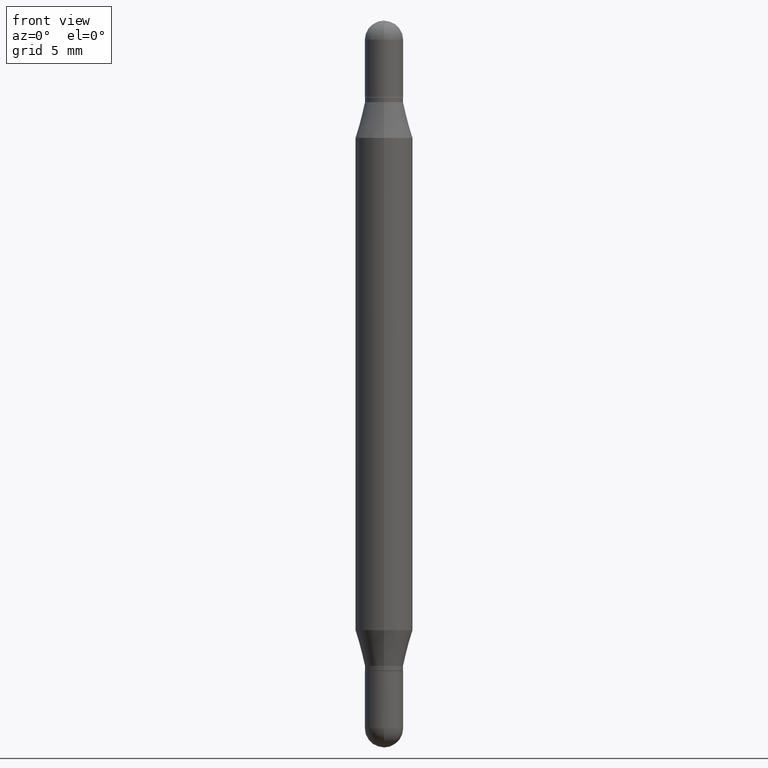
[diagram: clean part render]
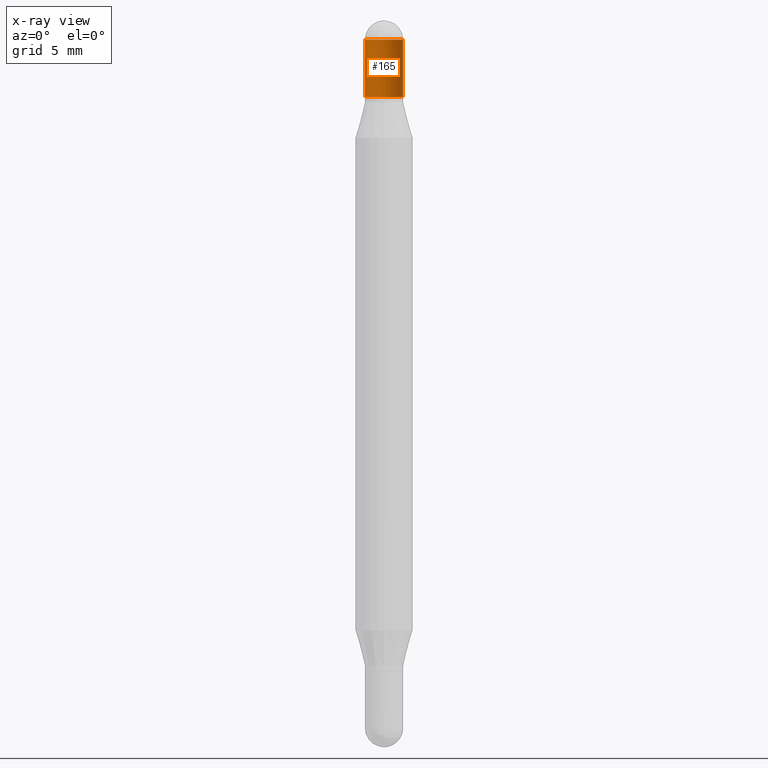
[diagram: x-ray — body ghosted, one internal face saturated and labeled with its STEP entity id]
A machine part, front view, then the same camera in x-ray: the body is ghosted and one INTERNAL B-rep face — a face not visible from any outside direction — is saturated and labeled: STEP entity #165.
In plain terms, the highlighted cylindrical surface (edge-blend (fillet) strip) has radius 0.9995 mm, axis along (-0, -0, -1).
Its self-contained STEP definition (entity closure, byte-faithful):
#49 = DIRECTION ( 'NONE',  ( 2.445468806185136597E-29, 3.479614466977828254E-15, 1.000000000000000000 ) ) ;
#66 = EDGE_CURVE ( 'NONE', #193, #834, #816, .T. ) ;
#69 = ORIENTED_EDGE ( 'NONE', *, *, #601, .F. ) ;
#90 = CARTESIAN_POINT ( 'NONE',  ( 0.03935000000000000303, -8.316958734148117577E-16, -0.1574999999999998901 ) ) ;
#111 = CARTESIAN_POINT ( 'NONE',  ( 3.562436683410197746E-29, -1.457998427744287112E-16, -0.03934999999999994752 ) ) ;
#116 = ORIENTED_EDGE ( 'NONE', *, *, #66, .T. ) ;
#139 = CARTESIAN_POINT ( 'NONE',  ( 0.000000000000000000, -5.214728217544379106E-15, -1.496099999999999985 ) ) ;
#152 = AXIS2_PLACEMENT_3D ( 'NONE', #349, #331, #876 ) ;
#165 = ADVANCED_FACE ( 'NONE', ( #372 ), #215, .T. ) ;
#193 = VERTEX_POINT ( 'NONE', #627 ) ;
#197 = DIRECTION ( 'NONE',  ( 1.000000000000000000, -6.982962677686266711E-15, 0.000000000000000000 ) ) ;
#215 = CYLINDRICAL_SURFACE ( 'NONE', #689, 0.03935000000000000303 ) ;
#255 = CARTESIAN_POINT ( 'NONE',  ( -0.03935000000000000303, -8.139747119883315106E-17, -0.1574999999999998901 ) ) ;
#257 = VERTEX_POINT ( 'NONE', #435 ) ;
#291 = DIRECTION ( 'NONE',  ( -2.445468806185136877E-29, -3.479614466977828648E-15, -1.000000000000000000 ) ) ;
#301 = VECTOR ( 'NONE', #291, 39.37007874015748143 ) ;
#305 = DIRECTION ( 'NONE',  ( 1.000000000000000000, -6.982962677686269077E-15, 0.000000000000000000 ) ) ;
#317 = ORIENTED_EDGE ( 'NONE', *, *, #473, .F. ) ;
#331 = DIRECTION ( 'NONE',  ( 2.445468806185136597E-29, 3.479614466977828254E-15, 1.000000000000000000 ) ) ;
#332 = ORIENTED_EDGE ( 'NONE', *, *, #986, .F. ) ;
#349 = CARTESIAN_POINT ( 'NONE',  ( 3.273504543959423913E-29, -5.569162920478571366E-16, -0.1574999999999998901 ) ) ;
#372 = FACE_OUTER_BOUND ( 'NONE', #606, .T. ) ;
#386 = VERTEX_POINT ( 'NONE', #255 ) ;
#407 = CIRCLE ( 'NONE', #1066, 0.03935000000000000303 ) ;
#435 = CARTESIAN_POINT ( 'NONE',  ( -0.03935000000000000303, -8.139747119883290454E-17, -0.03934999999999994752 ) ) ;
#467 = DIRECTION ( 'NONE',  ( -2.445468806185136877E-29, -3.479614466977828648E-15, -1.000000000000000000 ) ) ;
#473 = EDGE_CURVE ( 'NONE', #257, #386, #636, .T. ) ;
#554 = CARTESIAN_POINT ( 'NONE',  ( -0.03935000000000000303, -4.944767621332070245E-15, -1.496099999999999985 ) ) ;
#601 = EDGE_CURVE ( 'NONE', #724, #257, #1041, .T. ) ;
#606 = EDGE_LOOP ( 'NONE', ( #317, #69, #332, #116, #1054 ) ) ;
#627 = CARTESIAN_POINT ( 'NONE',  ( 0.03935000000000000303, -6.261376487780972369E-16, -0.03934999999999994752 ) ) ;
#636 = LINE ( 'NONE', #554, #888 ) ;
#674 = AXIS2_PLACEMENT_3D ( 'NONE', #840, #49, #833 ) ;
#689 = AXIS2_PLACEMENT_3D ( 'NONE', #139, #821, #305 ) ;
#724 = VERTEX_POINT ( 'NONE', #956 ) ;
#738 = CARTESIAN_POINT ( 'NONE',  ( 0.03935000000000000303, -5.489507798911334023E-15, -1.496099999999999985 ) ) ;
#816 = LINE ( 'NONE', #738, #301 ) ;
#821 = DIRECTION ( 'NONE',  ( -2.445468806185136597E-29, -3.479614466977828254E-15, -1.000000000000000000 ) ) ;
#833 = DIRECTION ( 'NONE',  ( 1.000000000000000000, -6.982962677686266711E-15, 0.000000000000000000 ) ) ;
#834 = VERTEX_POINT ( 'NONE', #90 ) ;
#840 = CARTESIAN_POINT ( 'NONE',  ( 3.562436683410197746E-29, -1.457998427744287112E-16, -0.03934999999999994752 ) ) ;
#876 = DIRECTION ( 'NONE',  ( 1.000000000000000000, -6.982962677686266711E-15, 0.000000000000000000 ) ) ;
#888 = VECTOR ( 'NONE', #467, 39.37007874015748143 ) ;
#919 = EDGE_CURVE ( 'NONE', #834, #386, #1116, .T. ) ;
#956 = CARTESIAN_POINT ( 'NONE',  ( 2.699605962123452963E-16, 0.03934999999999985038, -0.03935000000000008630 ) ) ;
#986 = EDGE_CURVE ( 'NONE', #193, #724, #407, .T. ) ;
#1041 = CIRCLE ( 'NONE', #674, 0.03935000000000000303 ) ;
#1042 = DIRECTION ( 'NONE',  ( 2.445468806185136597E-29, 3.479614466977828254E-15, 1.000000000000000000 ) ) ;
#1054 = ORIENTED_EDGE ( 'NONE', *, *, #919, .T. ) ;
#1066 = AXIS2_PLACEMENT_3D ( 'NONE', #111, #1042, #197 ) ;
#1116 = CIRCLE ( 'NONE', #152, 0.03935000000000000303 ) ;